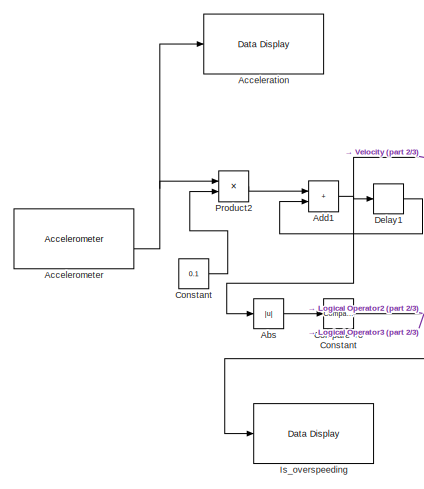
[diagram: root canvas - part 1/3, top left region]
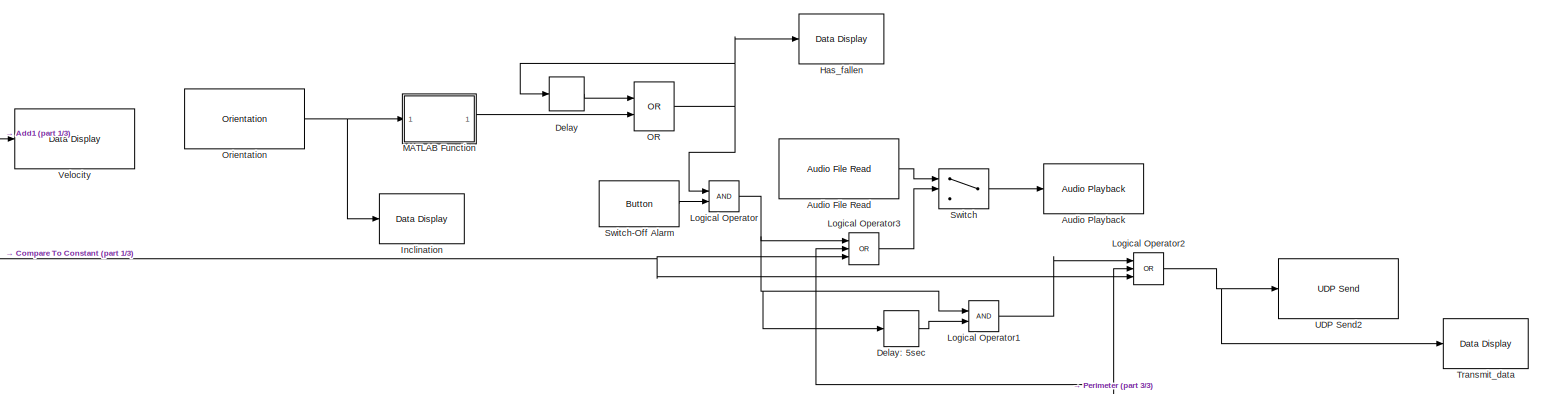
[diagram: root canvas - part 2/3, full width, top band]
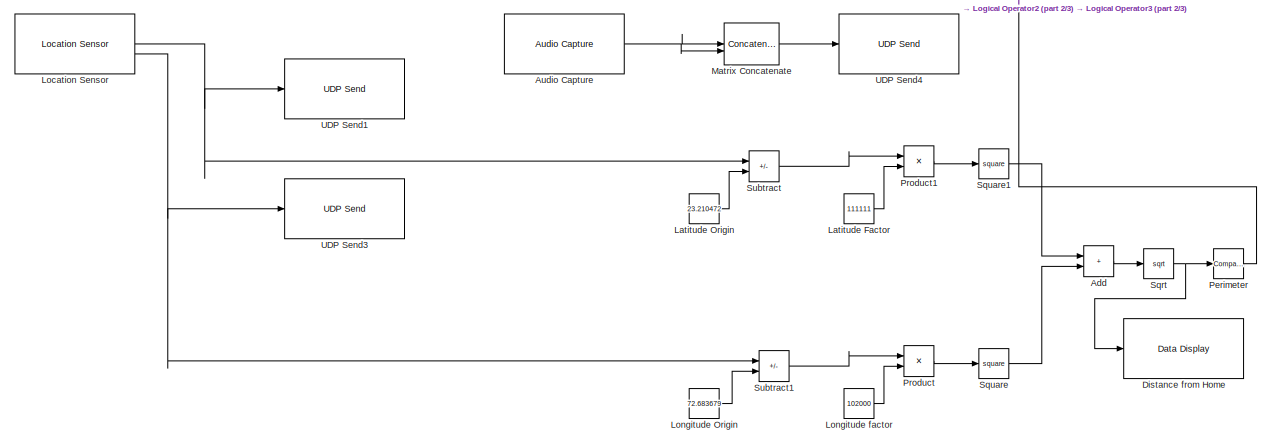
[diagram: root canvas - part 3/3, bottom center region]
MODEL slx_aa61e306649c
KIND model
CONFIG AbsTol = auto
CONFIG EnableMultiTasking = off
CONFIG FixedStep = auto
CONFIG MaxStep = auto
CONFIG MinStep = auto
CONFIG RelTol = 1e-3
CONFIG SampleTimeConstraint = Unconstrained
CONFIG SolverName = FixedStepAuto
CONFIG StartTime = 0.0
CONFIG StopTime = 10.0
BLOCK [Abs] Abs
  SaturateOnIntegerOverflow = off
BLOCK [Reference] Acceleration  REF=androiduilib/Data Display
  SourceBlock = androiduilib/Data Display
  SourceType = codertarget.internal.androidDataDisplay
BLOCK [Reference] Accelerometer  REF=androidsensorlib/Accelerometer
  SourceBlock = androidsensorlib/Accelerometer
  SourceType = codertarget.internal.androidAccelerometer
BLOCK [Sum] Add
  IconShape = rectangular
BLOCK [Sum] Add1
  IconShape = rectangular
BLOCK [Reference] Audio Capture  REF=androidaudiovideolib/Audio Capture
  SourceBlock = androidaudiovideolib/Audio Capture
  SourceType = codertarget.internal.androidAudioCapture
BLOCK [Reference] Audio File Read  REF=androidaudiovideolib/Audio File Read
  SourceBlock = androidaudiovideolib/Audio File Read
  SourceType = codertarget.internal.androidAudioFileRead
BLOCK [Reference] Audio Playback  REF=androidaudiovideolib/Audio Playback
  SourceBlock = androidaudiovideolib/Audio Playback
  SourceType = codertarget.internal.androidAudioPlayback
BLOCK [Reference] Compare To Constant  REF=simulink/Logic and Bit
Operations/Compare
To Constant
  SourceBlock = simulink/Logic and Bit\nOperations/Compare\nTo Constant
  SourceType = Compare To Constant
BLOCK [Constant] Constant
  Value = 0.1
BLOCK [Delay] Delay
  DelayLength = 1
  InitialCondition = 0
  InputPortMap = u0
BLOCK [Delay] Delay1
  DelayLength = 1
  InitialCondition = 0
  InputPortMap = u0
BLOCK [Delay] Delay: 5sec
  DelayLength = 50
  InitialCondition = 0
  InputPortMap = u0
BLOCK [Reference] Distance from Home  REF=androiduilib/Data Display
  SourceBlock = androiduilib/Data Display
  SourceType = codertarget.internal.androidDataDisplay
BLOCK [Reference] Has_fallen  REF=androiduilib/Data Display
  SourceBlock = androiduilib/Data Display
  SourceType = codertarget.internal.androidDataDisplay
BLOCK [Reference] Inclination  REF=androiduilib/Data Display
  SourceBlock = androiduilib/Data Display
  SourceType = codertarget.internal.androidDataDisplay
BLOCK [Reference] Is_overspeeding  REF=androiduilib/Data Display
  SourceBlock = androiduilib/Data Display
  SourceType = codertarget.internal.androidDataDisplay
BLOCK [Constant] Latitude Factor
  Value = 111111
BLOCK [Constant] Latitude Origin
  Value = 23.210472
BLOCK [Reference] Location Sensor  REF=androidsensorlib/Location Sensor
  SourceBlock = androidsensorlib/Location Sensor
  SourceType = codertarget.internal.androidLocation
BLOCK [Logic] Logical Operator
  AllPortsSameDT = off
  OutDataTypeStr = boolean
BLOCK [Logic] Logical Operator1
  AllPortsSameDT = off
  OutDataTypeStr = boolean
BLOCK [Logic] Logical Operator2
  AllPortsSameDT = off
  Inputs = 3
  Operator = OR
  OutDataTypeStr = boolean
BLOCK [Logic] Logical Operator3
  AllPortsSameDT = off
  Inputs = 3
  Operator = OR
  OutDataTypeStr = boolean
BLOCK [Constant] Longitude Origin
  Value = 72.683679
BLOCK [Constant] Longitude factor
  Value = 102000
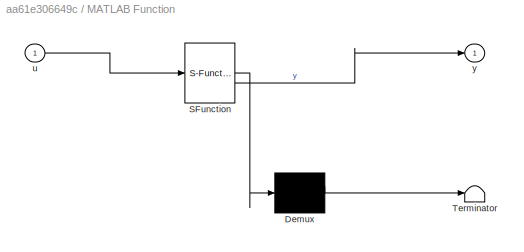
BLOCK [SubSystem] MATLAB Function
  ErrorFcn = Stateflow.Translate.translate
  LibrarySourceBlock = simulink/User-Defined\nFunctions/MATLAB Function
  PermitHierarchicalResolution = ExplicitOnly
  SFBlockType = MATLAB Function
  TreatAsAtomicUnit = on
BLOCK [Demux] MATLAB Function/ Demux 
  Outputs = 1
BLOCK [S-Function] MATLAB Function/ SFunction 
  EnableBusSupport = on
  FunctionName = sf_sfun
  PortCounts = [1 2]
  SFcnIsStateOwnerBlock = off
  SFunctionDeploymentMode = off
  Tag = Stateflow S-Function 2
BLOCK [Terminator] MATLAB Function/ Terminator 
BLOCK [Inport] MATLAB Function/u
BLOCK [Outport] MATLAB Function/y
BLOCK [Concatenate] Matrix Concatenate
  Mode = Multidimensional array
BLOCK [Logic] OR
  AllPortsSameDT = off
  Operator = OR
  OutDataTypeStr = boolean
BLOCK [Reference] Orientation  REF=androidsensorlib/Orientation
  SourceBlock = androidsensorlib/Orientation
  SourceType = codertarget.internal.androidOrientation
BLOCK [Reference] Perimeter  REF=simulink/Logic and Bit
Operations/Compare
To Constant
  SourceBlock = simulink/Logic and Bit\nOperations/Compare\nTo Constant
  SourceType = Compare To Constant
BLOCK [Product] Product
BLOCK [Product] Product1
BLOCK [Product] Product2
BLOCK [Sqrt] Sqrt
BLOCK [Math] Square
  Operator = square
BLOCK [Math] Square1
  Operator = square
BLOCK [Sum] Subtract
  IconShape = rectangular
  Inputs = +-
BLOCK [Sum] Subtract1
  IconShape = rectangular
  Inputs = +-
BLOCK [Switch] Switch
  Criteria = u2 > Threshold
  InputSameDT = off
  SaturateOnIntegerOverflow = off
BLOCK [Reference] Switch-Off Alarm  REF=androiduilib/Button
  SourceBlock = androiduilib/Button
  SourceType = codertarget.internal.androidButton
BLOCK [Reference] Transmit_data  REF=androiduilib/Data Display
  SourceBlock = androiduilib/Data Display
  SourceType = codertarget.internal.androidDataDisplay
BLOCK [Reference] UDP Send1  REF=androidcommunicationlib/UDP Send
  SourceBlock = androidcommunicationlib/UDP Send
  SourceType = UDP Send
BLOCK [Reference] UDP Send2  REF=androidcommunicationlib/UDP Send
  SourceBlock = androidcommunicationlib/UDP Send
  SourceType = UDP Send
BLOCK [Reference] UDP Send3  REF=androidcommunicationlib/UDP Send
  SourceBlock = androidcommunicationlib/UDP Send
  SourceType = UDP Send
BLOCK [Reference] UDP Send4  REF=androidcommunicationlib/UDP Send
  SourceBlock = androidcommunicationlib/UDP Send
  SourceType = UDP Send
BLOCK [Reference] Velocity  REF=androiduilib/Data Display
  SourceBlock = androiduilib/Data Display
  SourceType = codertarget.internal.androidDataDisplay
LINE Abs:1 -> Compare To Constant:1
NET Accelerometer:2 -> Acceleration:1, Product2:1
NET Add1:1 -> Abs:1, Delay1:1, Velocity:1
LINE Add:1 -> Sqrt:1
NET Audio Capture:1 -> Matrix Concatenate:1, Matrix Concatenate:2
LINE Audio File Read:1 -> Switch:1
NET Compare To Constant:1 -> Is_overspeeding:1, Logical Operator2:3, Logical Operator3:3
LINE Constant:1 -> Product2:2
LINE Delay1:1 -> Add1:2
LINE Delay: 5sec:1 -> Logical Operator1:2
LINE Delay:1 -> OR:1
LINE Latitude Factor:1 -> Product1:2
LINE Latitude Origin:1 -> Subtract:2
NET Location Sensor:1 -> Subtract:1, UDP Send1:1
NET Location Sensor:2 -> Subtract1:1, UDP Send3:1
LINE Logical Operator1:1 -> Logical Operator2:1
NET Logical Operator2:1 -> Transmit_data:1, UDP Send2:1
LINE Logical Operator3:1 -> Switch:2
NET Logical Operator:1 -> Delay: 5sec:1, Logical Operator1:1, Logical Operator3:1
LINE Longitude Origin:1 -> Subtract1:2
LINE Longitude factor:1 -> Product:2
LINE MATLAB Function:1 -> OR:2
LINE Matrix Concatenate:1 -> UDP Send4:1
NET OR:1 -> Delay:1, Has_fallen:1, Logical Operator:1
NET Orientation:1 -> Inclination:1, MATLAB Function:1
NET Perimeter:1 -> Logical Operator2:2, Logical Operator3:2
LINE Product1:1 -> Square1:1
LINE Product2:1 -> Add1:1
LINE Product:1 -> Square:1
NET Sqrt:1 -> Distance from Home:1, Perimeter:1
LINE Square1:1 -> Add:1
LINE Square:1 -> Add:2
LINE Subtract1:1 -> Product:1
LINE Subtract:1 -> Product1:1
LINE Switch-Off Alarm:1 -> Logical Operator:2
LINE Switch:1 -> Audio Playback:1
note: NET lines group one-source signal fan-out (src -> all destinations, sorted); 1:1 wires keep LINE
CHART MATLAB Function states=1 transitions=1
  STATE_LABEL 'eML_blk_kernel()'
  STATE_LABEL 'SCRIPT:\nfunction y = fcn(u)\n\ninc = u(2);\nif inc<-65 || inc> 65\n    y = 1;\nelse\n    y = 0;\nend'
CHART  states=0 transitions=0
